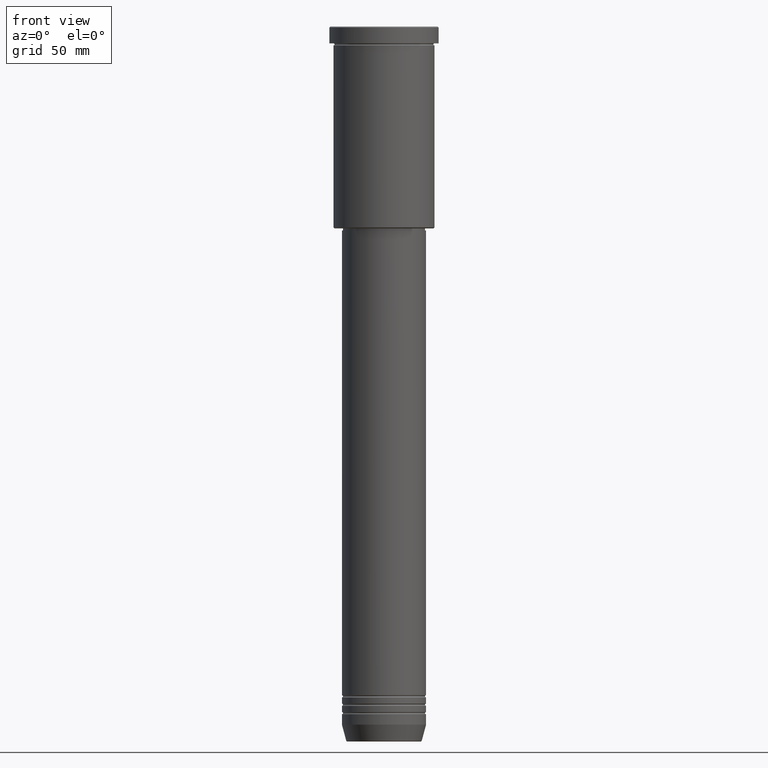
[diagram: clean part render]
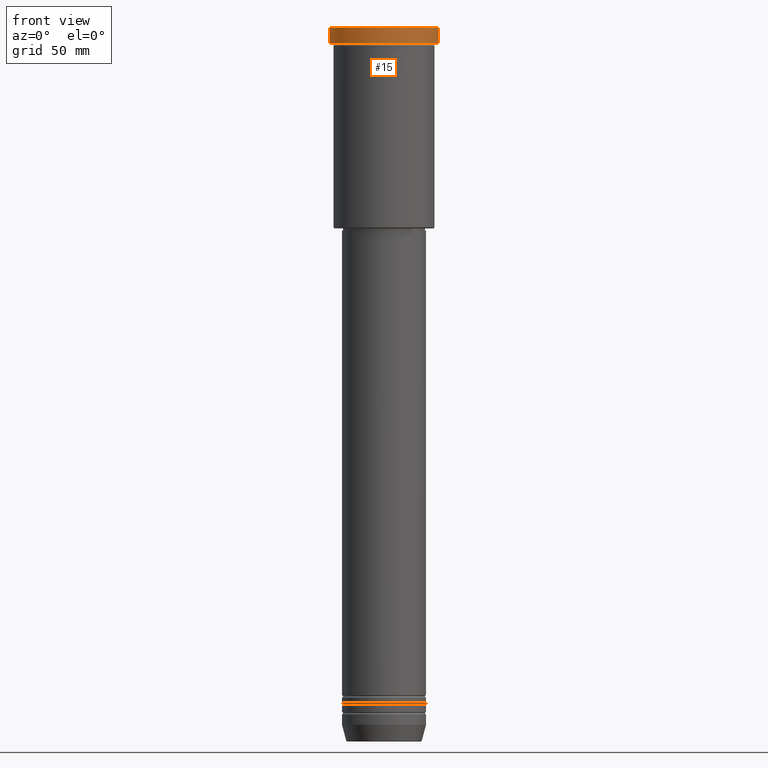
[diagram: same view with one face highlighted and labeled with its STEP entity id]
A machine part, front view. The second image highlights one B-rep face of the part: STEP entity #15.
In plain terms, the highlighted cylindrical surface (partial cylindrical patch) has radius 26 mm, axis along (-0, -0, 1).
Its self-contained STEP definition (entity closure, byte-faithful):
#15 = ADVANCED_FACE ( 'NONE', ( #669 ), #384, .T. ) ;
#49 = VECTOR ( 'NONE', #1025, 1000.000000000000000 ) ;
#91 = CARTESIAN_POINT ( 'NONE',  ( -26.00000000000000000, 3.184081677783118191E-15, 0.000000000000000000 ) ) ;
#123 = LINE ( 'NONE', #460, #49 ) ;
#126 = ORIENTED_EDGE ( 'NONE', *, *, #557, .F. ) ;
#205 = DIRECTION ( 'NONE',  ( -0.000000000000000000, -0.000000000000000000, 1.000000000000000000 ) ) ;
#246 = CARTESIAN_POINT ( 'NONE',  ( 26.00000000000000000, 0.000000000000000000, -7.999999999999992895 ) ) ;
#285 = VERTEX_POINT ( 'NONE', #845 ) ;
#322 = AXIS2_PLACEMENT_3D ( 'NONE', #895, #620, #985 ) ;
#384 = CYLINDRICAL_SURFACE ( 'NONE', #751, 26.00000000000000000 ) ;
#442 = EDGE_CURVE ( 'NONE', #568, #650, #123, .T. ) ;
#454 = EDGE_LOOP ( 'NONE', ( #126, #846, #467, #1118 ) ) ;
#460 = CARTESIAN_POINT ( 'NONE',  ( 26.00000000000000000, 0.000000000000000000, 0.000000000000000000 ) ) ;
#467 = ORIENTED_EDGE ( 'NONE', *, *, #442, .T. ) ;
#473 = EDGE_CURVE ( 'NONE', #285, #568, #597, .T. ) ;
#505 = VECTOR ( 'NONE', #1067, 1000.000000000000000 ) ;
#517 = CARTESIAN_POINT ( 'NONE',  ( 26.00000000000000000, 0.000000000000000000, -0.4999999999999692468 ) ) ;
#549 = CARTESIAN_POINT ( 'NONE',  ( 0.000000000000000000, 0.000000000000000000, -7.999999999999992895 ) ) ;
#557 = EDGE_CURVE ( 'NONE', #285, #1101, #722, .T. ) ;
#567 = DIRECTION ( 'NONE',  ( -0.000000000000000000, -0.000000000000000000, 1.000000000000000000 ) ) ;
#568 = VERTEX_POINT ( 'NONE', #246 ) ;
#581 = CARTESIAN_POINT ( 'NONE',  ( -26.00000000000000000, 3.184081677783118191E-15, -0.4999999999999692468 ) ) ;
#597 = CIRCLE ( 'NONE', #783, 26.00000000000000000 ) ;
#620 = DIRECTION ( 'NONE',  ( 0.000000000000000000, 0.000000000000000000, -1.000000000000000000 ) ) ;
#650 = VERTEX_POINT ( 'NONE', #517 ) ;
#661 = DIRECTION ( 'NONE',  ( 1.000000000000000000, 0.000000000000000000, 0.000000000000000000 ) ) ;
#669 = FACE_OUTER_BOUND ( 'NONE', #454, .T. ) ;
#703 = EDGE_CURVE ( 'NONE', #650, #1101, #710, .T. ) ;
#710 = CIRCLE ( 'NONE', #322, 26.00000000000000000 ) ;
#722 = LINE ( 'NONE', #91, #505 ) ;
#751 = AXIS2_PLACEMENT_3D ( 'NONE', #752, #567, #1032 ) ;
#752 = CARTESIAN_POINT ( 'NONE',  ( 0.000000000000000000, 0.000000000000000000, 0.000000000000000000 ) ) ;
#783 = AXIS2_PLACEMENT_3D ( 'NONE', #549, #205, #661 ) ;
#845 = CARTESIAN_POINT ( 'NONE',  ( -26.00000000000000000, 3.184081677783118191E-15, -7.999999999999992895 ) ) ;
#846 = ORIENTED_EDGE ( 'NONE', *, *, #473, .T. ) ;
#895 = CARTESIAN_POINT ( 'NONE',  ( 0.000000000000000000, 0.000000000000000000, -0.4999999999999692468 ) ) ;
#985 = DIRECTION ( 'NONE',  ( 1.000000000000000000, 0.000000000000000000, 0.000000000000000000 ) ) ;
#1025 = DIRECTION ( 'NONE',  ( -0.000000000000000000, -0.000000000000000000, 1.000000000000000000 ) ) ;
#1032 = DIRECTION ( 'NONE',  ( 1.000000000000000000, 0.000000000000000000, 0.000000000000000000 ) ) ;
#1067 = DIRECTION ( 'NONE',  ( -0.000000000000000000, -0.000000000000000000, 1.000000000000000000 ) ) ;
#1101 = VERTEX_POINT ( 'NONE', #581 ) ;
#1118 = ORIENTED_EDGE ( 'NONE', *, *, #703, .T. ) ;